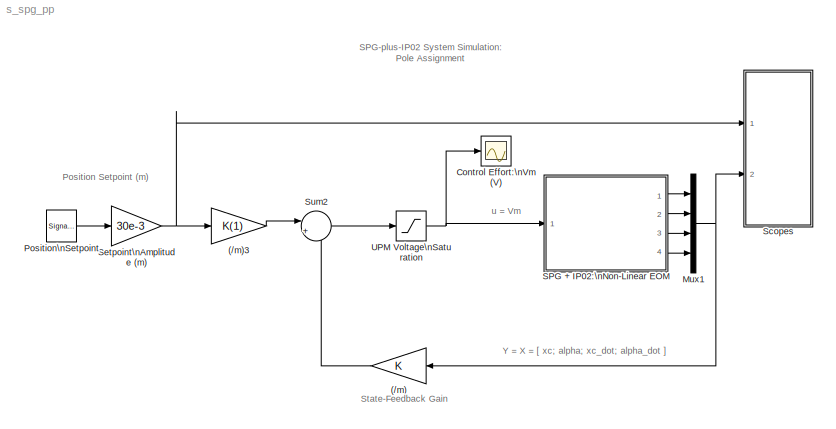
MODEL s_spg_pp
KIND model
BLOCK [Gain] (//m)
  Gain = K
  Multiplication = Matrix(K*u)
  SID = 1
BLOCK [Gain] (//m)3
  Gain = K(1)
  SID = 2
BLOCK [Scope] Control Effort:\nVm (V)
  Floating = off
  NumInputPorts = 1
  Ports = [1]
  SID = 3
  SampleTime = 0
  SaveName = ScopeData2
  ShowLegends = off
  TickLabels = on
  TimeRange = 5
  YMax = 35
  YMin = -35
BLOCK [Mux] Mux1
  DisplayOption = bar
  Ports = [4, 1]
  SID = 4
BLOCK [SignalGenerator] Position\nSetpoint
  Frequency = 0.1
  Ports = [0, 1]
  SID = 5
  WaveForm = square
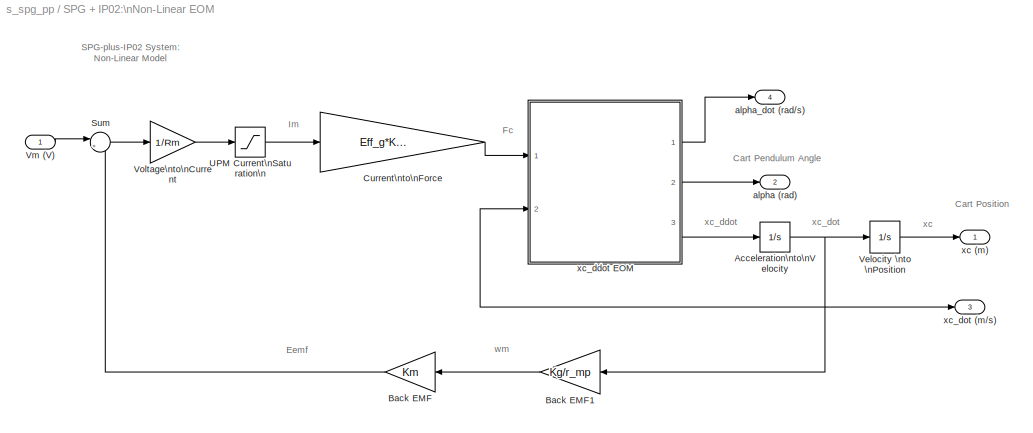
BLOCK [SubSystem] SPG + IP02:\nNon-Linear EOM
  FunctionWithSeparateData = off
  MaskHideContents = off
  MinAlgLoopOccurrences = off
  Opaque = off
  Ports = [1, 4]
  PropExecContextOutsideSubsystem = off
  RTWSystemCode = Auto
  RequestExecContextInheritance = off
  SID = 6
BLOCK [Integrator] SPG + IP02:\nNon-Linear EOM/Acceleration\nto\nVelocity
  InitialCondition = X0(3)
  Ports = [1, 1]
  SID = 8
BLOCK [Gain] SPG + IP02:\nNon-Linear EOM/Back EMF
  Gain = Km
  SID = 9
BLOCK [Gain] SPG + IP02:\nNon-Linear EOM/Back EMF1
  Gain = Kg/r_mp
  SID = 10
BLOCK [Gain] SPG + IP02:\nNon-Linear EOM/Current\nto\nForce
  Gain = Eff_g*Kg*Eff_m*Kt/r_mp
  SID = 11
BLOCK [Sum] SPG + IP02:\nNon-Linear EOM/Sum
  IconShape = round
  Inputs = |+-
  Ports = [2, 1]
  SID = 12
BLOCK [Saturate] SPG + IP02:\nNon-Linear EOM/UPM Current\nSaturation\n
  InputPortMap = u0
  LowerLimit = - IMAX_UPM
  Ports = [1, 1]
  SID = 13
  UpperLimit = IMAX_UPM
BLOCK [Integrator] SPG + IP02:\nNon-Linear EOM/Velocity \nto \nPosition
  InitialCondition = X0(1)
  Ports = [1, 1]
  SID = 14
BLOCK [Inport] SPG + IP02:\nNon-Linear EOM/Vm (V)
  IconDisplay = Port number
  SID = 7
BLOCK [Gain] SPG + IP02:\nNon-Linear EOM/Voltage\nto\nCurrent
  Gain = 1/Rm
  SID = 15
BLOCK [Outport] SPG + IP02:\nNon-Linear EOM/alpha (rad)
  IconDisplay = Port number
  Port = 2
  SID = 104
BLOCK [Outport] SPG + IP02:\nNon-Linear EOM/alpha_dot (rad//s)
  IconDisplay = Port number
  InitialOutput = 0
  Port = 4
  SID = 106
BLOCK [Outport] SPG + IP02:\nNon-Linear EOM/xc (m)
  IconDisplay = Port number
  SID = 103
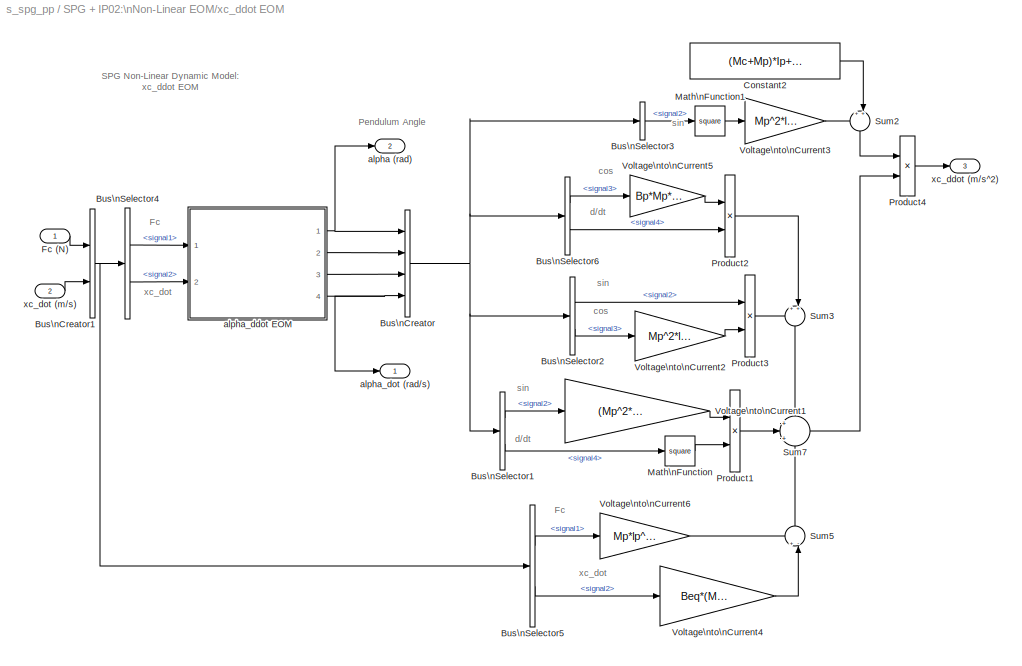
BLOCK [SubSystem] SPG + IP02:\nNon-Linear EOM/xc_ddot EOM
  FunctionWithSeparateData = off
  MaskHideContents = off
  MinAlgLoopOccurrences = off
  Opaque = off
  Ports = [2, 3]
  PropExecContextOutsideSubsystem = off
  RTWSystemCode = Auto
  RequestExecContextInheritance = off
  SID = 16
BLOCK [BusCreator] SPG + IP02:\nNon-Linear EOM/xc_ddot EOM/Bus\nCreator
  DisplayOption = bar
  Ports = [4, 1]
  SID = 19
BLOCK [BusCreator] SPG + IP02:\nNon-Linear EOM/xc_ddot EOM/Bus\nCreator1
  DisplayOption = bar
  Inputs = 2
  Ports = [2, 1]
  SID = 20
BLOCK [BusSelector] SPG + IP02:\nNon-Linear EOM/xc_ddot EOM/Bus\nSelector1
  OutputSignals = signal2,signal4
  Ports = [1, 2]
  SID = 21
BLOCK [BusSelector] SPG + IP02:\nNon-Linear EOM/xc_ddot EOM/Bus\nSelector2
  OutputSignals = signal2,signal3
  Ports = [1, 2]
  SID = 22
BLOCK [BusSelector] SPG + IP02:\nNon-Linear EOM/xc_ddot EOM/Bus\nSelector3
  OutputSignals = signal2
  Ports = [1, 1]
  SID = 23
BLOCK [BusSelector] SPG + IP02:\nNon-Linear EOM/xc_ddot EOM/Bus\nSelector4
  OutputSignals = signal1,signal2
  Ports = [1, 2]
  SID = 24
BLOCK [BusSelector] SPG + IP02:\nNon-Linear EOM/xc_ddot EOM/Bus\nSelector5
  OutputSignals = signal1,signal2
  Ports = [1, 2]
  SID = 25
BLOCK [BusSelector] SPG + IP02:\nNon-Linear EOM/xc_ddot EOM/Bus\nSelector6
  OutputSignals = signal3,signal4
  Ports = [1, 2]
  SID = 26
BLOCK [Constant] SPG + IP02:\nNon-Linear EOM/xc_ddot EOM/Constant2
  SID = 27
  Value = (Mc+Mp)*Ip+Mc*Mp*lp^2
BLOCK [Inport] SPG + IP02:\nNon-Linear EOM/xc_ddot EOM/Fc (N)
  IconDisplay = Port number
  SID = 17
BLOCK [Math] SPG + IP02:\nNon-Linear EOM/xc_ddot EOM/Math\nFunction
  Operator = square
  Ports = [1, 1]
  SID = 28
BLOCK [Math] SPG + IP02:\nNon-Linear EOM/xc_ddot EOM/Math\nFunction1
  Operator = square
  Ports = [1, 1]
  SID = 29
BLOCK [Product] SPG + IP02:\nNon-Linear EOM/xc_ddot EOM/Product1
  Ports = [2, 1]
  SID = 30
BLOCK [Product] SPG + IP02:\nNon-Linear EOM/xc_ddot EOM/Product2
  Ports = [2, 1]
  SID = 31
BLOCK [Product] SPG + IP02:\nNon-Linear EOM/xc_ddot EOM/Product3
  Ports = [2, 1]
  SID = 32
BLOCK [Product] SPG + IP02:\nNon-Linear EOM/xc_ddot EOM/Product4
  Inputs = /*
  Ports = [2, 1]
  SID = 33
BLOCK [Sum] SPG + IP02:\nNon-Linear EOM/xc_ddot EOM/Sum2
  IconShape = round
  Inputs = ++|
  Ports = [2, 1]
  SID = 34
BLOCK [Sum] SPG + IP02:\nNon-Linear EOM/xc_ddot EOM/Sum3
  IconShape = round
  Inputs = ++|
  Ports = [2, 1]
  SID = 35
BLOCK [Sum] SPG + IP02:\nNon-Linear EOM/xc_ddot EOM/Sum5
  IconShape = round
  Inputs = +-|
  Ports = [2, 1]
  SID = 36
BLOCK [Sum] SPG + IP02:\nNon-Linear EOM/xc_ddot EOM/Sum7
  IconShape = round
  Inputs = +|+|+
  Ports = [3, 1]
  SID = 37
BLOCK [Gain] SPG + IP02:\nNon-Linear EOM/xc_ddot EOM/Voltage\nto\nCurrent1
  Gain = (Mp^2*lp^3+Ip*Mp*lp)
  SID = 38
BLOCK [Gain] SPG + IP02:\nNon-Linear EOM/xc_ddot EOM/Voltage\nto\nCurrent2
  Gain = Mp^2*lp^2*g
  SID = 39
BLOCK [Gain] SPG + IP02:\nNon-Linear EOM/xc_ddot EOM/Voltage\nto\nCurrent3
  Gain = Mp^2*lp^2
  SID = 40
BLOCK [Gain] SPG + IP02:\nNon-Linear EOM/xc_ddot EOM/Voltage\nto\nCurrent4
  Gain = Beq*(Mp*lp^2+Ip)
  SID = 41
BLOCK [Gain] SPG + IP02:\nNon-Linear EOM/xc_ddot EOM/Voltage\nto\nCurrent5
  Gain = Bp*Mp*lp
  SID = 42
BLOCK [Gain] SPG + IP02:\nNon-Linear EOM/xc_ddot EOM/Voltage\nto\nCurrent6
  Gain = Mp*lp^2+Ip
  SID = 43
BLOCK [Outport] SPG + IP02:\nNon-Linear EOM/xc_ddot EOM/alpha (rad)
  IconDisplay = Port number
  Port = 2
  SID = 88
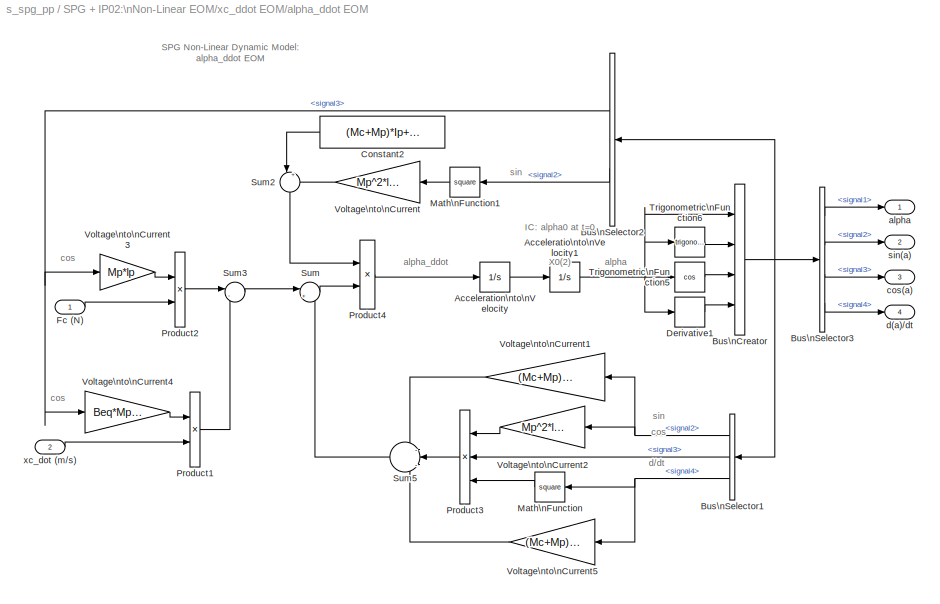
BLOCK [SubSystem] SPG + IP02:\nNon-Linear EOM/xc_ddot EOM/alpha_ddot EOM
  FunctionWithSeparateData = off
  MaskHideContents = off
  MinAlgLoopOccurrences = off
  Opaque = off
  Ports = [2, 4]
  PropExecContextOutsideSubsystem = off
  RTWSystemCode = Auto
  RequestExecContextInheritance = off
  SID = 44
BLOCK [Integrator] SPG + IP02:\nNon-Linear EOM/xc_ddot EOM/alpha_ddot EOM/Acceleratio\nto\nVelocity1
  InitialCondition = X0(2)
  Ports = [1, 1]
  SID = 47
BLOCK [Integrator] SPG + IP02:\nNon-Linear EOM/xc_ddot EOM/alpha_ddot EOM/Acceleration\nto\nVelocity
  InitialCondition = X0(4)
  Ports = [1, 1]
  SID = 48
BLOCK [BusCreator] SPG + IP02:\nNon-Linear EOM/xc_ddot EOM/alpha_ddot EOM/Bus\nCreator
  DisplayOption = bar
  Ports = [4, 1]
  SID = 49
BLOCK [BusSelector] SPG + IP02:\nNon-Linear EOM/xc_ddot EOM/alpha_ddot EOM/Bus\nSelector1
  OutputSignals = signal2,signal3,signal4
  Ports = [1, 3]
  SID = 50
BLOCK [BusSelector] SPG + IP02:\nNon-Linear EOM/xc_ddot EOM/alpha_ddot EOM/Bus\nSelector2
  OutputSignals = signal3,signal2
  Ports = [1, 2]
  SID = 51
BLOCK [BusSelector] SPG + IP02:\nNon-Linear EOM/xc_ddot EOM/alpha_ddot EOM/Bus\nSelector3
  OutputSignals = signal1,signal2,signal3,signal4
  Ports = [1, 4]
  SID = 52
BLOCK [Constant] SPG + IP02:\nNon-Linear EOM/xc_ddot EOM/alpha_ddot EOM/Constant2
  SID = 53
  Value = (Mc+Mp)*Ip+Mc*Mp*lp^2
BLOCK [Derivative] SPG + IP02:\nNon-Linear EOM/xc_ddot EOM/alpha_ddot EOM/Derivative1
  SID = 54
BLOCK [Inport] SPG + IP02:\nNon-Linear EOM/xc_ddot EOM/alpha_ddot EOM/Fc (N)
  IconDisplay = Port number
  SID = 45
BLOCK [Math] SPG + IP02:\nNon-Linear EOM/xc_ddot EOM/alpha_ddot EOM/Math\nFunction
  Operator = square
  Ports = [1, 1]
  SID = 55
BLOCK [Math] SPG + IP02:\nNon-Linear EOM/xc_ddot EOM/alpha_ddot EOM/Math\nFunction1
  Operator = square
  Ports = [1, 1]
  SID = 56
BLOCK [Product] SPG + IP02:\nNon-Linear EOM/xc_ddot EOM/alpha_ddot EOM/Product1
  Ports = [2, 1]
  SID = 57
BLOCK [Product] SPG + IP02:\nNon-Linear EOM/xc_ddot EOM/alpha_ddot EOM/Product2
  Ports = [2, 1]
  SID = 58
BLOCK [Product] SPG + IP02:\nNon-Linear EOM/xc_ddot EOM/alpha_ddot EOM/Product3
  Inputs = 3
  Ports = [3, 1]
  SID = 59
BLOCK [Product] SPG + IP02:\nNon-Linear EOM/xc_ddot EOM/alpha_ddot EOM/Product4
  Inputs = /*
  Ports = [2, 1]
  SID = 60
BLOCK [Sum] SPG + IP02:\nNon-Linear EOM/xc_ddot EOM/alpha_ddot EOM/Sum
  IconShape = round
  Inputs = |++
  Ports = [2, 1]
  SID = 61
BLOCK [Sum] SPG + IP02:\nNon-Linear EOM/xc_ddot EOM/alpha_ddot EOM/Sum2
  IconShape = round
  Inputs = |++
  Ports = [2, 1]
  SID = 62
BLOCK [Sum] SPG + IP02:\nNon-Linear EOM/xc_ddot EOM/alpha_ddot EOM/Sum3
  IconShape = round
  Inputs = |-+
  Ports = [2, 1]
  SID = 63
BLOCK [Sum] SPG + IP02:\nNon-Linear EOM/xc_ddot EOM/alpha_ddot EOM/Sum5
  IconShape = round
  Inputs = -|-|-
  Ports = [3, 1]
  SID = 64
BLOCK [Trigonometry] SPG + IP02:\nNon-Linear EOM/xc_ddot EOM/alpha_ddot EOM/Trigonometric\nFunction5
  Operator = cos
  Ports = [1, 1]
  SID = 65
BLOCK [Trigonometry] SPG + IP02:\nNon-Linear EOM/xc_ddot EOM/alpha_ddot EOM/Trigonometric\nFunction6
  Ports = [1, 1]
  SID = 66
BLOCK [Gain] SPG + IP02:\nNon-Linear EOM/xc_ddot EOM/alpha_ddot EOM/Voltage\nto\nCurrent
  Gain = Mp^2*lp^2
  SID = 67
BLOCK [Gain] SPG + IP02:\nNon-Linear EOM/xc_ddot EOM/alpha_ddot EOM/Voltage\nto\nCurrent1
  Gain = (Mc+Mp)*Mp*lp*g
  SID = 68
BLOCK [Gain] SPG + IP02:\nNon-Linear EOM/xc_ddot EOM/alpha_ddot EOM/Voltage\nto\nCurrent2
  Gain = Mp^2*lp^2
  SID = 69
BLOCK [Gain] SPG + IP02:\nNon-Linear EOM/xc_ddot EOM/alpha_ddot EOM/Voltage\nto\nCurrent3
  Gain = Mp*lp
  SID = 70
BLOCK [Gain] SPG + IP02:\nNon-Linear EOM/xc_ddot EOM/alpha_ddot EOM/Voltage\nto\nCurrent4
  Gain = Beq*Mp*lp
  SID = 71
BLOCK [Gain] SPG + IP02:\nNon-Linear EOM/xc_ddot EOM/alpha_ddot EOM/Voltage\nto\nCurrent5
  Gain = (Mc+Mp)*Bp
  SID = 72
BLOCK [Outport] SPG + IP02:\nNon-Linear EOM/xc_ddot EOM/alpha_ddot EOM/alpha
  IconDisplay = Port number
  InitialOutput = 0
  SID = 73
BLOCK [Outport] SPG + IP02:\nNon-Linear EOM/xc_ddot EOM/alpha_ddot EOM/cos(a)
  IconDisplay = Port number
  InitialOutput = 0
  Port = 3
  SID = 75
BLOCK [Outport] SPG + IP02:\nNon-Linear EOM/xc_ddot EOM/alpha_ddot EOM/d(a)//dt
  IconDisplay = Port number
  InitialOutput = 0
  Port = 4
  SID = 76
BLOCK [Outport] SPG + IP02:\nNon-Linear EOM/xc_ddot EOM/alpha_ddot EOM/sin(a)
  IconDisplay = Port number
  InitialOutput = 0
  Port = 2
  SID = 74
BLOCK [Inport] SPG + IP02:\nNon-Linear EOM/xc_ddot EOM/alpha_ddot EOM/xc_dot (m//s)
  IconDisplay = Port number
  Port = 2
  SID = 46
BLOCK [Outport] SPG + IP02:\nNon-Linear EOM/xc_ddot EOM/alpha_dot (rad//s)
  IconDisplay = Port number
  SID = 87
BLOCK [Outport] SPG + IP02:\nNon-Linear EOM/xc_ddot EOM/xc_ddot (m//s^2)
  IconDisplay = Port number
  Port = 3
  SID = 89
BLOCK [Inport] SPG + IP02:\nNon-Linear EOM/xc_ddot EOM/xc_dot (m//s)
  IconDisplay = Port number
  Port = 2
  SID = 18
BLOCK [Outport] SPG + IP02:\nNon-Linear EOM/xc_dot (m//s)
  IconDisplay = Port number
  InitialOutput = 0
  Port = 3
  SID = 105
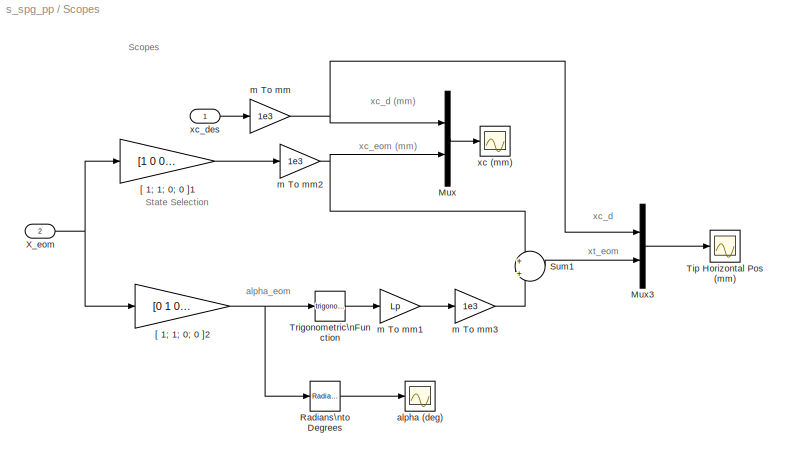
BLOCK [SubSystem] Scopes
  FunctionWithSeparateData = off
  MaskHideContents = off
  MinAlgLoopOccurrences = off
  Opaque = off
  Ports = [2]
  PropExecContextOutsideSubsystem = off
  RTWSystemCode = Auto
  RequestExecContextInheritance = off
  SID = 117
BLOCK [Mux] Scopes/Mux
  DisplayOption = bar
  Inputs = 2
  Ports = [2, 1]
  SID = 120
BLOCK [Mux] Scopes/Mux3
  DisplayOption = bar
  Inputs = 2
  Ports = [2, 1]
  SID = 121
BLOCK [Reference] Scopes/Radians\nto Degrees  REF=simulink_extras/Transformations/Radians\nto Degrees
  Ports = [1, 1]
  SID = 122
  SourceBlock = simulink_extras/Transformations/Radians\nto Degrees
  SourceType = RadiansToDegrees
BLOCK [Sum] Scopes/Sum1
  IconShape = round
  Inputs = +|+
  Ports = [2, 1]
  SID = 123
BLOCK [Scope] Scopes/Tip Horizontal Pos (mm)
  DataFormat = StructureWithTime
  Floating = off
  NumInputPorts = 1
  Ports = [1]
  SID = 124
  SampleTime = 0
  SaveName = ScopeData5
  ShowLegends = off
BLOCK [Trigonometry] Scopes/Trigonometric\nFunction
  Ports = [1, 1]
  SID = 125
BLOCK [Inport] Scopes/X_eom
  IconDisplay = Port number
  Port = 2
  SID = 119
BLOCK [Gain] Scopes/[ 1; 1; 0; 0 ]1
  Gain = [1 0 0 0]
  Multiplication = Matrix(K*u)
  SID = 126
BLOCK [Gain] Scopes/[ 1; 1; 0; 0 ]2
  Gain = [0 1 0 0]
  Multiplication = Matrix(K*u)
  SID = 127
BLOCK [Scope] Scopes/alpha (deg)
  Floating = off
  LimitDataPoints = off
  NumInputPorts = 1
  Ports = [1]
  SID = 128
  SampleTime = 0
  SaveName = ScopeData3
  ShowLegends = off
  TickLabels = on
  TimeRange = 1
  YMax = 250
  YMin = -250
BLOCK [Gain] Scopes/m To mm
  Gain = 1e3
  SID = 129
BLOCK [Gain] Scopes/m To mm1
  Gain = Lp
  SID = 130
BLOCK [Gain] Scopes/m To mm2
  Gain = 1e3
  SID = 131
BLOCK [Gain] Scopes/m To mm3
  Gain = 1e3
  SID = 132
BLOCK [Scope] Scopes/xc (mm)
  Floating = off
  LimitDataPoints = off
  NumInputPorts = 1
  Ports = [1]
  SID = 133
  SampleTime = 0
  SaveName = ScopeData1
  ShowLegends = off
  TickLabels = on
  TimeRange = 5
  YMax = 35
  YMin = -35
BLOCK [Inport] Scopes/xc_des
  IconDisplay = Port number
  SID = 118
BLOCK [Gain] Setpoint\nAmplitude (m)
  Gain = 30e-3
  SID = 141
BLOCK [Sum] Sum2
  IconShape = round
  Inputs = |+-
  Ports = [2, 1]
  SID = 142
BLOCK [Saturate] UPM Voltage\nSaturation
  InputPortMap = u0
  LowerLimit = - VMAX_UPM
  Ports = [1, 1]
  SID = 143
  UpperLimit = VMAX_UPM
ANNOTATION (root): Position Setpoint (m)
ANNOTATION (root): SPG-plus-IP02 System Simulation:\nPole Assignment
ANNOTATION (root): State-Feedback Gain
ANNOTATION (root): Y = X = [ xc; alpha; xc_dot; alpha_dot ]
ANNOTATION (root): u = Vm
ANNOTATION SPG + IP02:\nNon-Linear EOM: Cart Pendulum Angle
ANNOTATION SPG + IP02:\nNon-Linear EOM: Cart Position
ANNOTATION SPG + IP02:\nNon-Linear EOM: Eemf
ANNOTATION SPG + IP02:\nNon-Linear EOM: Fc
ANNOTATION SPG + IP02:\nNon-Linear EOM: Im
ANNOTATION SPG + IP02:\nNon-Linear EOM: SPG-plus-IP02 System:\nNon-Linear Model
ANNOTATION SPG + IP02:\nNon-Linear EOM: wm
ANNOTATION SPG + IP02:\nNon-Linear EOM: xc
ANNOTATION SPG + IP02:\nNon-Linear EOM: xc_ddot
ANNOTATION SPG + IP02:\nNon-Linear EOM: xc_dot
ANNOTATION SPG + IP02:\nNon-Linear EOM/xc_ddot EOM: Fc
ANNOTATION SPG + IP02:\nNon-Linear EOM/xc_ddot EOM: Pendulum Angle
ANNOTATION SPG + IP02:\nNon-Linear EOM/xc_ddot EOM: SPG Non-Linear Dynamic Model:\nxc_ddot EOM
ANNOTATION SPG + IP02:\nNon-Linear EOM/xc_ddot EOM: cos
ANNOTATION SPG + IP02:\nNon-Linear EOM/xc_ddot EOM: d/dt
ANNOTATION SPG + IP02:\nNon-Linear EOM/xc_ddot EOM: sin
ANNOTATION SPG + IP02:\nNon-Linear EOM/xc_ddot EOM: xc_dot
ANNOTATION SPG + IP02:\nNon-Linear EOM/xc_ddot EOM/alpha_ddot EOM: IC: alpha0 at t=0\nX0(2)
ANNOTATION SPG + IP02:\nNon-Linear EOM/xc_ddot EOM/alpha_ddot EOM: SPG Non-Linear Dynamic Model:\nalpha_ddot EOM
ANNOTATION SPG + IP02:\nNon-Linear EOM/xc_ddot EOM/alpha_ddot EOM: alpha
ANNOTATION SPG + IP02:\nNon-Linear EOM/xc_ddot EOM/alpha_ddot EOM: alpha_ddot
ANNOTATION SPG + IP02:\nNon-Linear EOM/xc_ddot EOM/alpha_ddot EOM: cos
ANNOTATION SPG + IP02:\nNon-Linear EOM/xc_ddot EOM/alpha_ddot EOM: d/dt
ANNOTATION SPG + IP02:\nNon-Linear EOM/xc_ddot EOM/alpha_ddot EOM: sin
ANNOTATION Scopes: Scopes
ANNOTATION Scopes: State Selection
ANNOTATION Scopes: alpha_eom
ANNOTATION Scopes: xc_d
ANNOTATION Scopes: xc_d (mm)
ANNOTATION Scopes: xc_eom (mm)
ANNOTATION Scopes: xt_eom
LINE (//m)3:1 -> Sum2:1
LINE (//m):1 -> Sum2:2
NET Mux1:1 -> (//m):1, Scopes:2
LINE Position\nSetpoint:1 -> Setpoint\nAmplitude (m):1
NET SPG + IP02:\nNon-Linear EOM/Acceleration\nto\nVelocity:1 -> SPG + IP02:\nNon-Linear EOM/Back EMF1:1, SPG + IP02:\nNon-Linear EOM/Velocity \nto \nPosition:1, SPG + IP02:\nNon-Linear EOM/xc_ddot EOM:2, SPG + IP02:\nNon-Linear EOM/xc_dot (m//s):1
LINE SPG + IP02:\nNon-Linear EOM/Back EMF1:1 -> SPG + IP02:\nNon-Linear EOM/Back EMF:1
LINE SPG + IP02:\nNon-Linear EOM/Back EMF:1 -> SPG + IP02:\nNon-Linear EOM/Sum:2
LINE SPG + IP02:\nNon-Linear EOM/Current\nto\nForce:1 -> SPG + IP02:\nNon-Linear EOM/xc_ddot EOM:1
LINE SPG + IP02:\nNon-Linear EOM/Sum:1 -> SPG + IP02:\nNon-Linear EOM/Voltage\nto\nCurrent:1
LINE SPG + IP02:\nNon-Linear EOM/UPM Current\nSaturation\n:1 -> SPG + IP02:\nNon-Linear EOM/Current\nto\nForce:1
LINE SPG + IP02:\nNon-Linear EOM/Velocity \nto \nPosition:1 -> SPG + IP02:\nNon-Linear EOM/xc (m):1
LINE SPG + IP02:\nNon-Linear EOM/Vm (V):1 -> SPG + IP02:\nNon-Linear EOM/Sum:1
LINE SPG + IP02:\nNon-Linear EOM/Voltage\nto\nCurrent:1 -> SPG + IP02:\nNon-Linear EOM/UPM Current\nSaturation\n:1
NET SPG + IP02:\nNon-Linear EOM/xc_ddot EOM/Bus\nCreator1:1 -> SPG + IP02:\nNon-Linear EOM/xc_ddot EOM/Bus\nSelector4:1, SPG + IP02:\nNon-Linear EOM/xc_ddot EOM/Bus\nSelector5:1
NET SPG + IP02:\nNon-Linear EOM/xc_ddot EOM/Bus\nCreator:1 -> SPG + IP02:\nNon-Linear EOM/xc_ddot EOM/Bus\nSelector1:1, SPG + IP02:\nNon-Linear EOM/xc_ddot EOM/Bus\nSelector2:1, SPG + IP02:\nNon-Linear EOM/xc_ddot EOM/Bus\nSelector3:1, SPG + IP02:\nNon-Linear EOM/xc_ddot EOM/Bus\nSelector6:1
LINE SPG + IP02:\nNon-Linear EOM/xc_ddot EOM/Bus\nSelector1:1 -> SPG + IP02:\nNon-Linear EOM/xc_ddot EOM/Voltage\nto\nCurrent1:1
LINE SPG + IP02:\nNon-Linear EOM/xc_ddot EOM/Bus\nSelector1:2 -> SPG + IP02:\nNon-Linear EOM/xc_ddot EOM/Math\nFunction:1
LINE SPG + IP02:\nNon-Linear EOM/xc_ddot EOM/Bus\nSelector2:1 -> SPG + IP02:\nNon-Linear EOM/xc_ddot EOM/Product3:1
LINE SPG + IP02:\nNon-Linear EOM/xc_ddot EOM/Bus\nSelector2:2 -> SPG + IP02:\nNon-Linear EOM/xc_ddot EOM/Voltage\nto\nCurrent2:1
LINE SPG + IP02:\nNon-Linear EOM/xc_ddot EOM/Bus\nSelector3:1 -> SPG + IP02:\nNon-Linear EOM/xc_ddot EOM/Math\nFunction1:1
LINE SPG + IP02:\nNon-Linear EOM/xc_ddot EOM/Bus\nSelector4:1 -> SPG + IP02:\nNon-Linear EOM/xc_ddot EOM/alpha_ddot EOM:1
LINE SPG + IP02:\nNon-Linear EOM/xc_ddot EOM/Bus\nSelector4:2 -> SPG + IP02:\nNon-Linear EOM/xc_ddot EOM/alpha_ddot EOM:2
LINE SPG + IP02:\nNon-Linear EOM/xc_ddot EOM/Bus\nSelector5:1 -> SPG + IP02:\nNon-Linear EOM/xc_ddot EOM/Voltage\nto\nCurrent6:1
LINE SPG + IP02:\nNon-Linear EOM/xc_ddot EOM/Bus\nSelector5:2 -> SPG + IP02:\nNon-Linear EOM/xc_ddot EOM/Voltage\nto\nCurrent4:1
LINE SPG + IP02:\nNon-Linear EOM/xc_ddot EOM/Bus\nSelector6:1 -> SPG + IP02:\nNon-Linear EOM/xc_ddot EOM/Voltage\nto\nCurrent5:1
LINE SPG + IP02:\nNon-Linear EOM/xc_ddot EOM/Bus\nSelector6:2 -> SPG + IP02:\nNon-Linear EOM/xc_ddot EOM/Product2:2
LINE SPG + IP02:\nNon-Linear EOM/xc_ddot EOM/Constant2:1 -> SPG + IP02:\nNon-Linear EOM/xc_ddot EOM/Sum2:2
LINE SPG + IP02:\nNon-Linear EOM/xc_ddot EOM/Fc (N):1 -> SPG + IP02:\nNon-Linear EOM/xc_ddot EOM/Bus\nCreator1:1
LINE SPG + IP02:\nNon-Linear EOM/xc_ddot EOM/Math\nFunction1:1 -> SPG + IP02:\nNon-Linear EOM/xc_ddot EOM/Voltage\nto\nCurrent3:1
LINE SPG + IP02:\nNon-Linear EOM/xc_ddot EOM/Math\nFunction:1 -> SPG + IP02:\nNon-Linear EOM/xc_ddot EOM/Product1:2
LINE SPG + IP02:\nNon-Linear EOM/xc_ddot EOM/Product1:1 -> SPG + IP02:\nNon-Linear EOM/xc_ddot EOM/Sum7:2
LINE SPG + IP02:\nNon-Linear EOM/xc_ddot EOM/Product2:1 -> SPG + IP02:\nNon-Linear EOM/xc_ddot EOM/Sum3:2
LINE SPG + IP02:\nNon-Linear EOM/xc_ddot EOM/Product3:1 -> SPG + IP02:\nNon-Linear EOM/xc_ddot EOM/Sum3:1
LINE SPG + IP02:\nNon-Linear EOM/xc_ddot EOM/Product4:1 -> SPG + IP02:\nNon-Linear EOM/xc_ddot EOM/xc_ddot (m//s^2):1
LINE SPG + IP02:\nNon-Linear EOM/xc_ddot EOM/Sum2:1 -> SPG + IP02:\nNon-Linear EOM/xc_ddot EOM/Product4:1
LINE SPG + IP02:\nNon-Linear EOM/xc_ddot EOM/Sum3:1 -> SPG + IP02:\nNon-Linear EOM/xc_ddot EOM/Sum7:1
LINE SPG + IP02:\nNon-Linear EOM/xc_ddot EOM/Sum5:1 -> SPG + IP02:\nNon-Linear EOM/xc_ddot EOM/Sum7:3
LINE SPG + IP02:\nNon-Linear EOM/xc_ddot EOM/Sum7:1 -> SPG + IP02:\nNon-Linear EOM/xc_ddot EOM/Product4:2
LINE SPG + IP02:\nNon-Linear EOM/xc_ddot EOM/Voltage\nto\nCurrent1:1 -> SPG + IP02:\nNon-Linear EOM/xc_ddot EOM/Product1:1
LINE SPG + IP02:\nNon-Linear EOM/xc_ddot EOM/Voltage\nto\nCurrent2:1 -> SPG + IP02:\nNon-Linear EOM/xc_ddot EOM/Product3:2
LINE SPG + IP02:\nNon-Linear EOM/xc_ddot EOM/Voltage\nto\nCurrent3:1 -> SPG + IP02:\nNon-Linear EOM/xc_ddot EOM/Sum2:1
LINE SPG + IP02:\nNon-Linear EOM/xc_ddot EOM/Voltage\nto\nCurrent4:1 -> SPG + IP02:\nNon-Linear EOM/xc_ddot EOM/Sum5:2
LINE SPG + IP02:\nNon-Linear EOM/xc_ddot EOM/Voltage\nto\nCurrent5:1 -> SPG + IP02:\nNon-Linear EOM/xc_ddot EOM/Product2:1
LINE SPG + IP02:\nNon-Linear EOM/xc_ddot EOM/Voltage\nto\nCurrent6:1 -> SPG + IP02:\nNon-Linear EOM/xc_ddot EOM/Sum5:1
NET SPG + IP02:\nNon-Linear EOM/xc_ddot EOM/alpha_ddot EOM/Acceleratio\nto\nVelocity1:1 -> SPG + IP02:\nNon-Linear EOM/xc_ddot EOM/alpha_ddot EOM/Bus\nCreator:1, SPG + IP02:\nNon-Linear EOM/xc_ddot EOM/alpha_ddot EOM/Derivative1:1, SPG + IP02:\nNon-Linear EOM/xc_ddot EOM/alpha_ddot EOM/Trigonometric\nFunction5:1, SPG + IP02:\nNon-Linear EOM/xc_ddot EOM/alpha_ddot EOM/Trigonometric\nFunction6:1
LINE SPG + IP02:\nNon-Linear EOM/xc_ddot EOM/alpha_ddot EOM/Acceleration\nto\nVelocity:1 -> SPG + IP02:\nNon-Linear EOM/xc_ddot EOM/alpha_ddot EOM/Acceleratio\nto\nVelocity1:1
NET SPG + IP02:\nNon-Linear EOM/xc_ddot EOM/alpha_ddot EOM/Bus\nCreator:1 -> SPG + IP02:\nNon-Linear EOM/xc_ddot EOM/alpha_ddot EOM/Bus\nSelector1:1, SPG + IP02:\nNon-Linear EOM/xc_ddot EOM/alpha_ddot EOM/Bus\nSelector2:1, SPG + IP02:\nNon-Linear EOM/xc_ddot EOM/alpha_ddot EOM/Bus\nSelector3:1
NET SPG + IP02:\nNon-Linear EOM/xc_ddot EOM/alpha_ddot EOM/Bus\nSelector1:1 -> SPG + IP02:\nNon-Linear EOM/xc_ddot EOM/alpha_ddot EOM/Voltage\nto\nCurrent1:1, SPG + IP02:\nNon-Linear EOM/xc_ddot EOM/alpha_ddot EOM/Voltage\nto\nCurrent2:1
LINE SPG + IP02:\nNon-Linear EOM/xc_ddot EOM/alpha_ddot EOM/Bus\nSelector1:2 -> SPG + IP02:\nNon-Linear EOM/xc_ddot EOM/alpha_ddot EOM/Product3:2
NET SPG + IP02:\nNon-Linear EOM/xc_ddot EOM/alpha_ddot EOM/Bus\nSelector1:3 -> SPG + IP02:\nNon-Linear EOM/xc_ddot EOM/alpha_ddot EOM/Math\nFunction:1, SPG + IP02:\nNon-Linear EOM/xc_ddot EOM/alpha_ddot EOM/Voltage\nto\nCurrent5:1
NET SPG + IP02:\nNon-Linear EOM/xc_ddot EOM/alpha_ddot EOM/Bus\nSelector2:1 -> SPG + IP02:\nNon-Linear EOM/xc_ddot EOM/alpha_ddot EOM/Voltage\nto\nCurrent3:1, SPG + IP02:\nNon-Linear EOM/xc_ddot EOM/alpha_ddot EOM/Voltage\nto\nCurrent4:1
LINE SPG + IP02:\nNon-Linear EOM/xc_ddot EOM/alpha_ddot EOM/Bus\nSelector2:2 -> SPG + IP02:\nNon-Linear EOM/xc_ddot EOM/alpha_ddot EOM/Math\nFunction1:1
LINE SPG + IP02:\nNon-Linear EOM/xc_ddot EOM/alpha_ddot EOM/Bus\nSelector3:1 -> SPG + IP02:\nNon-Linear EOM/xc_ddot EOM/alpha_ddot EOM/alpha:1
LINE SPG + IP02:\nNon-Linear EOM/xc_ddot EOM/alpha_ddot EOM/Bus\nSelector3:2 -> SPG + IP02:\nNon-Linear EOM/xc_ddot EOM/alpha_ddot EOM/sin(a):1
LINE SPG + IP02:\nNon-Linear EOM/xc_ddot EOM/alpha_ddot EOM/Bus\nSelector3:3 -> SPG + IP02:\nNon-Linear EOM/xc_ddot EOM/alpha_ddot EOM/cos(a):1
LINE SPG + IP02:\nNon-Linear EOM/xc_ddot EOM/alpha_ddot EOM/Bus\nSelector3:4 -> SPG + IP02:\nNon-Linear EOM/xc_ddot EOM/alpha_ddot EOM/d(a)//dt:1
LINE SPG + IP02:\nNon-Linear EOM/xc_ddot EOM/alpha_ddot EOM/Constant2:1 -> SPG + IP02:\nNon-Linear EOM/xc_ddot EOM/alpha_ddot EOM/Sum2:1
LINE SPG + IP02:\nNon-Linear EOM/xc_ddot EOM/alpha_ddot EOM/Derivative1:1 -> SPG + IP02:\nNon-Linear EOM/xc_ddot EOM/alpha_ddot EOM/Bus\nCreator:4
LINE SPG + IP02:\nNon-Linear EOM/xc_ddot EOM/alpha_ddot EOM/Fc (N):1 -> SPG + IP02:\nNon-Linear EOM/xc_ddot EOM/alpha_ddot EOM/Product2:2
LINE SPG + IP02:\nNon-Linear EOM/xc_ddot EOM/alpha_ddot EOM/Math\nFunction1:1 -> SPG + IP02:\nNon-Linear EOM/xc_ddot EOM/alpha_ddot EOM/Voltage\nto\nCurrent:1
LINE SPG + IP02:\nNon-Linear EOM/xc_ddot EOM/alpha_ddot EOM/Math\nFunction:1 -> SPG + IP02:\nNon-Linear EOM/xc_ddot EOM/alpha_ddot EOM/Product3:3
LINE SPG + IP02:\nNon-Linear EOM/xc_ddot EOM/alpha_ddot EOM/Product1:1 -> SPG + IP02:\nNon-Linear EOM/xc_ddot EOM/alpha_ddot EOM/Sum3:2
LINE SPG + IP02:\nNon-Linear EOM/xc_ddot EOM/alpha_ddot EOM/Product2:1 -> SPG + IP02:\nNon-Linear EOM/xc_ddot EOM/alpha_ddot EOM/Sum3:1
LINE SPG + IP02:\nNon-Linear EOM/xc_ddot EOM/alpha_ddot EOM/Product3:1 -> SPG + IP02:\nNon-Linear EOM/xc_ddot EOM/alpha_ddot EOM/Sum5:2
LINE SPG + IP02:\nNon-Linear EOM/xc_ddot EOM/alpha_ddot EOM/Product4:1 -> SPG + IP02:\nNon-Linear EOM/xc_ddot EOM/alpha_ddot EOM/Acceleration\nto\nVelocity:1
LINE SPG + IP02:\nNon-Linear EOM/xc_ddot EOM/alpha_ddot EOM/Sum2:1 -> SPG + IP02:\nNon-Linear EOM/xc_ddot EOM/alpha_ddot EOM/Product4:1
LINE SPG + IP02:\nNon-Linear EOM/xc_ddot EOM/alpha_ddot EOM/Sum3:1 -> SPG + IP02:\nNon-Linear EOM/xc_ddot EOM/alpha_ddot EOM/Sum:1
LINE SPG + IP02:\nNon-Linear EOM/xc_ddot EOM/alpha_ddot EOM/Sum5:1 -> SPG + IP02:\nNon-Linear EOM/xc_ddot EOM/alpha_ddot EOM/Sum:2
LINE SPG + IP02:\nNon-Linear EOM/xc_ddot EOM/alpha_ddot EOM/Sum:1 -> SPG + IP02:\nNon-Linear EOM/xc_ddot EOM/alpha_ddot EOM/Product4:2
LINE SPG + IP02:\nNon-Linear EOM/xc_ddot EOM/alpha_ddot EOM/Trigonometric\nFunction5:1 -> SPG + IP02:\nNon-Linear EOM/xc_ddot EOM/alpha_ddot EOM/Bus\nCreator:3
LINE SPG + IP02:\nNon-Linear EOM/xc_ddot EOM/alpha_ddot EOM/Trigonometric\nFunction6:1 -> SPG + IP02:\nNon-Linear EOM/xc_ddot EOM/alpha_ddot EOM/Bus\nCreator:2
LINE SPG + IP02:\nNon-Linear EOM/xc_ddot EOM/alpha_ddot EOM/Voltage\nto\nCurrent1:1 -> SPG + IP02:\nNon-Linear EOM/xc_ddot EOM/alpha_ddot EOM/Sum5:1
LINE SPG + IP02:\nNon-Linear EOM/xc_ddot EOM/alpha_ddot EOM/Voltage\nto\nCurrent2:1 -> SPG + IP02:\nNon-Linear EOM/xc_ddot EOM/alpha_ddot EOM/Product3:1
LINE SPG + IP02:\nNon-Linear EOM/xc_ddot EOM/alpha_ddot EOM/Voltage\nto\nCurrent3:1 -> SPG + IP02:\nNon-Linear EOM/xc_ddot EOM/alpha_ddot EOM/Product2:1
LINE SPG + IP02:\nNon-Linear EOM/xc_ddot EOM/alpha_ddot EOM/Voltage\nto\nCurrent4:1 -> SPG + IP02:\nNon-Linear EOM/xc_ddot EOM/alpha_ddot EOM/Product1:1
LINE SPG + IP02:\nNon-Linear EOM/xc_ddot EOM/alpha_ddot EOM/Voltage\nto\nCurrent5:1 -> SPG + IP02:\nNon-Linear EOM/xc_ddot EOM/alpha_ddot EOM/Sum5:3
LINE SPG + IP02:\nNon-Linear EOM/xc_ddot EOM/alpha_ddot EOM/Voltage\nto\nCurrent:1 -> SPG + IP02:\nNon-Linear EOM/xc_ddot EOM/alpha_ddot EOM/Sum2:2
LINE SPG + IP02:\nNon-Linear EOM/xc_ddot EOM/alpha_ddot EOM/xc_dot (m//s):1 -> SPG + IP02:\nNon-Linear EOM/xc_ddot EOM/alpha_ddot EOM/Product1:2
NET SPG + IP02:\nNon-Linear EOM/xc_ddot EOM/alpha_ddot EOM:1 -> SPG + IP02:\nNon-Linear EOM/xc_ddot EOM/Bus\nCreator:1, SPG + IP02:\nNon-Linear EOM/xc_ddot EOM/alpha (rad):1
LINE SPG + IP02:\nNon-Linear EOM/xc_ddot EOM/alpha_ddot EOM:2 -> SPG + IP02:\nNon-Linear EOM/xc_ddot EOM/Bus\nCreator:2
LINE SPG + IP02:\nNon-Linear EOM/xc_ddot EOM/alpha_ddot EOM:3 -> SPG + IP02:\nNon-Linear EOM/xc_ddot EOM/Bus\nCreator:3
NET SPG + IP02:\nNon-Linear EOM/xc_ddot EOM/alpha_ddot EOM:4 -> SPG + IP02:\nNon-Linear EOM/xc_ddot EOM/Bus\nCreator:4, SPG + IP02:\nNon-Linear EOM/xc_ddot EOM/alpha_dot (rad//s):1
LINE SPG + IP02:\nNon-Linear EOM/xc_ddot EOM/xc_dot (m//s):1 -> SPG + IP02:\nNon-Linear EOM/xc_ddot EOM/Bus\nCreator1:2
LINE SPG + IP02:\nNon-Linear EOM/xc_ddot EOM:1 -> SPG + IP02:\nNon-Linear EOM/alpha_dot (rad//s):1
LINE SPG + IP02:\nNon-Linear EOM/xc_ddot EOM:2 -> SPG + IP02:\nNon-Linear EOM/alpha (rad):1
LINE SPG + IP02:\nNon-Linear EOM/xc_ddot EOM:3 -> SPG + IP02:\nNon-Linear EOM/Acceleration\nto\nVelocity:1
LINE SPG + IP02:\nNon-Linear EOM:1 -> Mux1:1
LINE SPG + IP02:\nNon-Linear EOM:2 -> Mux1:2
LINE SPG + IP02:\nNon-Linear EOM:3 -> Mux1:3
LINE SPG + IP02:\nNon-Linear EOM:4 -> Mux1:4
LINE Scopes/Mux3:1 -> Scopes/Tip Horizontal Pos (mm):1
LINE Scopes/Mux:1 -> Scopes/xc (mm):1
LINE Scopes/Radians\nto Degrees:1 -> Scopes/alpha (deg):1
LINE Scopes/Sum1:1 -> Scopes/Mux3:2
LINE Scopes/Trigonometric\nFunction:1 -> Scopes/m To mm1:1
NET Scopes/X_eom:1 -> Scopes/[ 1; 1; 0; 0 ]1:1, Scopes/[ 1; 1; 0; 0 ]2:1
LINE Scopes/[ 1; 1; 0; 0 ]1:1 -> Scopes/m To mm2:1
NET Scopes/[ 1; 1; 0; 0 ]2:1 -> Scopes/Radians\nto Degrees:1, Scopes/Trigonometric\nFunction:1
LINE Scopes/m To mm1:1 -> Scopes/m To mm3:1
NET Scopes/m To mm2:1 -> Scopes/Mux:2, Scopes/Sum1:1
LINE Scopes/m To mm3:1 -> Scopes/Sum1:2
NET Scopes/m To mm:1 -> Scopes/Mux3:1, Scopes/Mux:1
LINE Scopes/xc_des:1 -> Scopes/m To mm:1
NET Setpoint\nAmplitude (m):1 -> (//m)3:1, Scopes:1
LINE Sum2:1 -> UPM Voltage\nSaturation:1
NET UPM Voltage\nSaturation:1 -> Control Effort:\nVm (V):1, SPG + IP02:\nNon-Linear EOM:1
note: NET lines group one-source signal fan-out (src -> all destinations, sorted); 1:1 wires keep LINE
